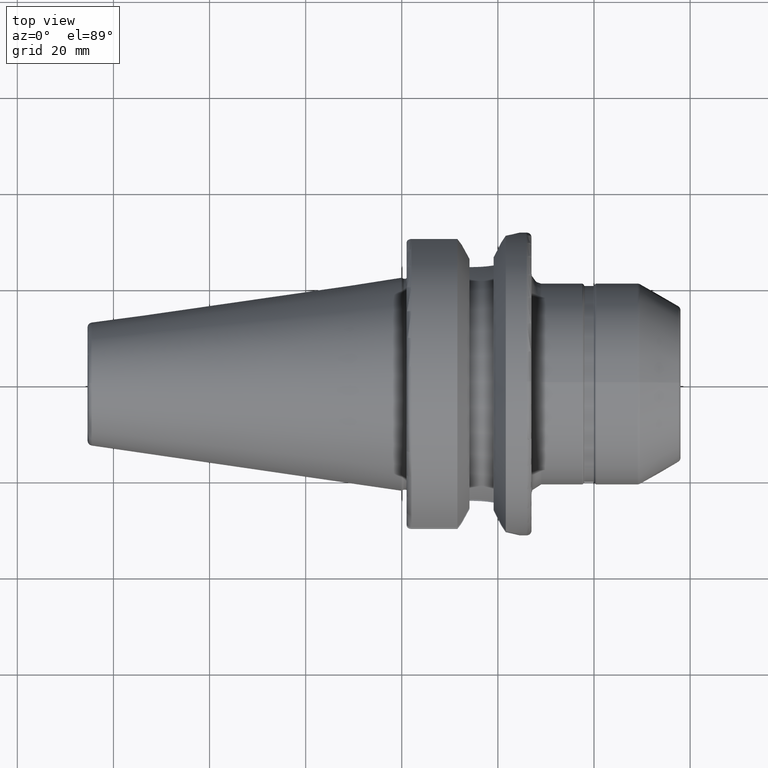
[diagram: clean part render]
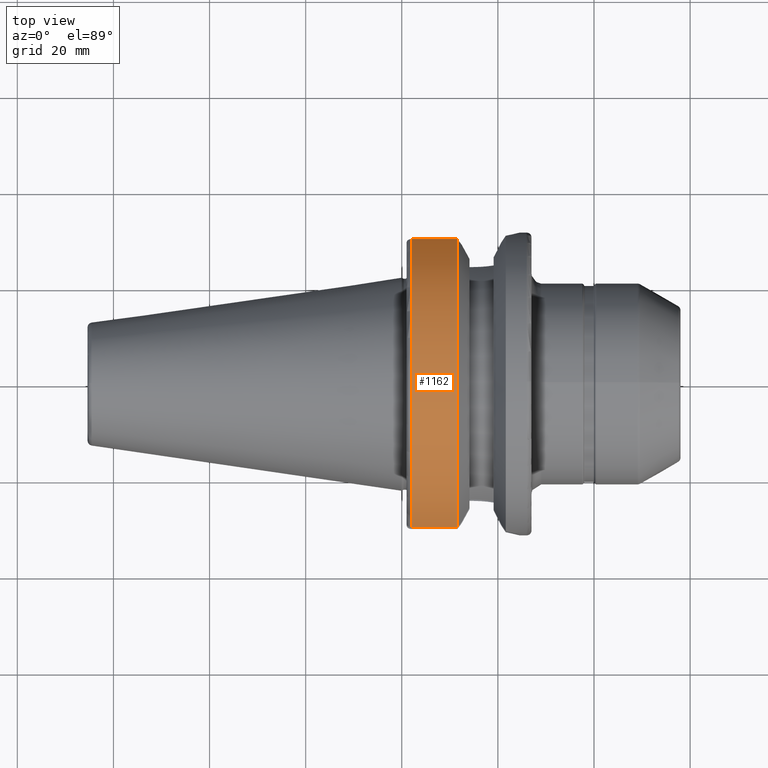
[diagram: same view with one face highlighted and labeled with its STEP entity id]
A machine part, top view. The second image highlights one B-rep face of the part: STEP entity #1162.
In plain terms, the highlighted cylindrical surface (partial cylindrical patch) has radius 31.5 mm, axis along (1, 0, 0).
Its self-contained STEP definition (entity closure, byte-faithful):
#139=FACE_OUTER_BOUND('',#215,.T.);
#215=EDGE_LOOP('',(#892,#893,#894,#895));
#275=LINE('',#2028,#339);
#281=LINE('',#2069,#345);
#339=VECTOR('',#1536,10.);
#345=VECTOR('',#1556,10.);
#430=CIRCLE('',#1300,31.5);
#431=CIRCLE('',#1302,31.5000000000001);
#516=VERTEX_POINT('',#2023);
#517=VERTEX_POINT('',#2027);
#524=VERTEX_POINT('',#2054);
#525=VERTEX_POINT('',#2067);
#651=EDGE_CURVE('',#516,#517,#275,.T.);
#660=EDGE_CURVE('',#524,#517,#430,.T.);
#662=EDGE_CURVE('',#525,#516,#431,.T.);
#663=EDGE_CURVE('',#524,#525,#281,.T.);
#892=ORIENTED_EDGE('',*,*,#651,.F.);
#893=ORIENTED_EDGE('',*,*,#662,.F.);
#894=ORIENTED_EDGE('',*,*,#663,.F.);
#895=ORIENTED_EDGE('',*,*,#660,.T.);
#1121=CYLINDRICAL_SURFACE('',#1301,31.5);
#1162=ADVANCED_FACE('',(#139),#1121,.T.);
#1300=AXIS2_PLACEMENT_3D('',#2055,#1550,#1551);
#1301=AXIS2_PLACEMENT_3D('',#2066,#1552,#1553);
#1302=AXIS2_PLACEMENT_3D('',#2068,#1554,#1555);
#1536=DIRECTION('',(-1.,0.,0.));
#1550=DIRECTION('center_axis',(1.,0.,0.));
#1551=DIRECTION('ref_axis',(0.,0.,-1.));
#1552=DIRECTION('center_axis',(1.,0.,0.));
#1553=DIRECTION('ref_axis',(0.,1.,0.));
#1554=DIRECTION('center_axis',(1.,0.,0.));
#1555=DIRECTION('ref_axis',(0.,0.,-1.));
#1556=DIRECTION('',(1.,0.,0.));
#2023=CARTESIAN_POINT('',(11.5690363073381,-30.0059801089944,9.58598757033588));
#2027=CARTESIAN_POINT('',(1.99999999999999,-30.0059801089944,9.58598757033586));
#2028=CARTESIAN_POINT('',(6.78451815366905,-30.0059801089944,9.58598757033587));
#2054=CARTESIAN_POINT('',(1.99999999999999,30.0059801089944,9.58598757033586));
#2055=CARTESIAN_POINT('Origin',(1.99999999999999,0.,0.));
#2066=CARTESIAN_POINT('Origin',(6.78451815366905,0.,0.));
#2067=CARTESIAN_POINT('',(11.5690363073381,30.0059801089944,9.58598757033588));
#2068=CARTESIAN_POINT('Origin',(11.5690363073381,0.,0.));
#2069=CARTESIAN_POINT('',(6.78451815366905,30.0059801089944,9.58598757033587));